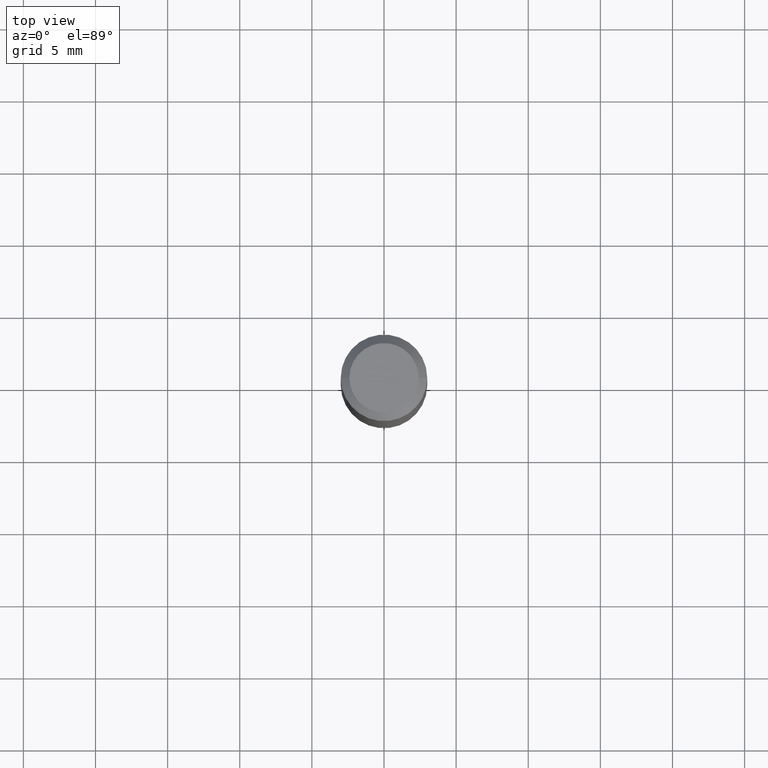
[diagram: clean part render]
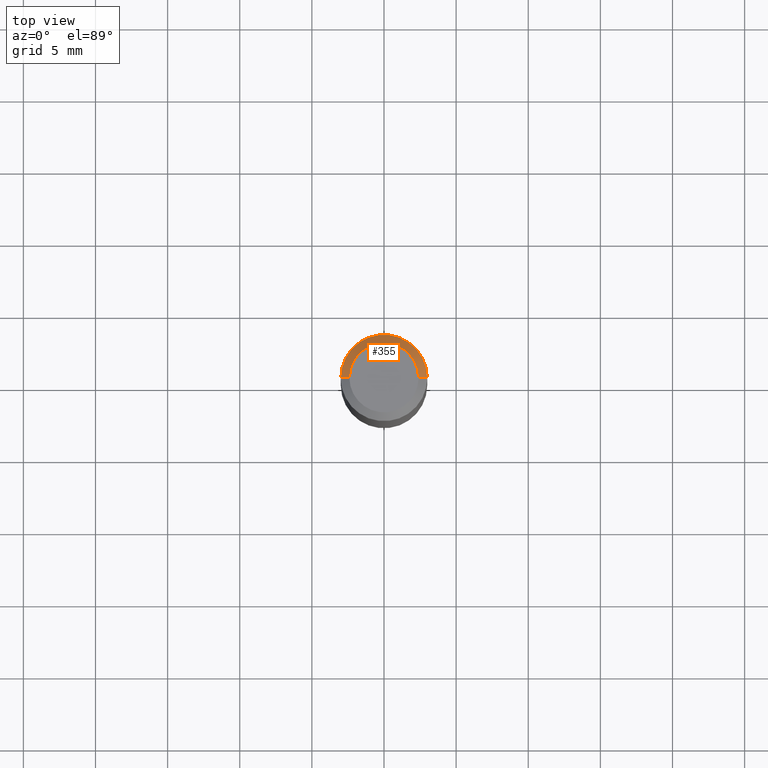
[diagram: same view with one face highlighted and labeled with its STEP entity id]
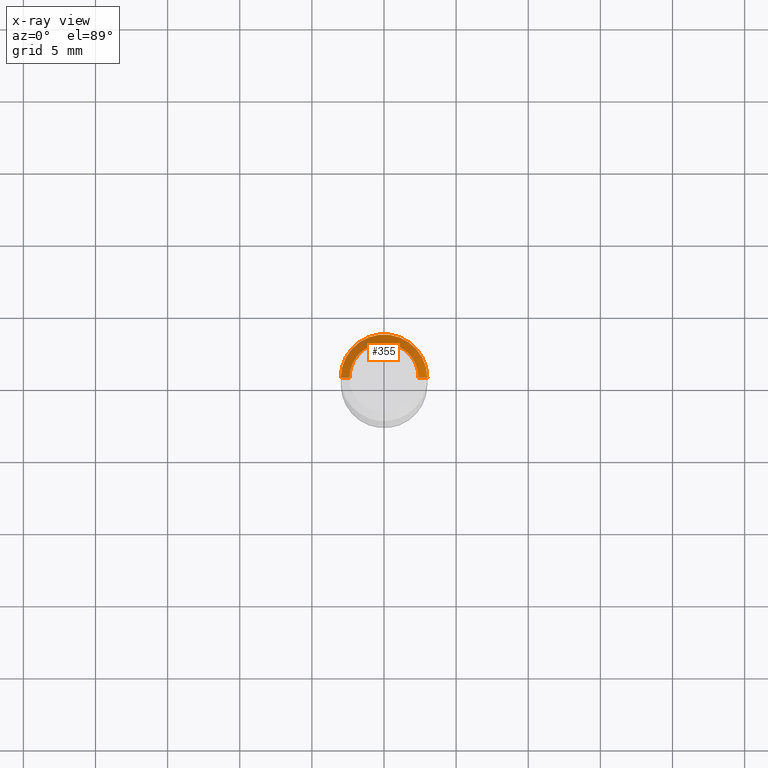
[diagram: x-ray of the same camera — body ghosted, the highlighted face saturated]
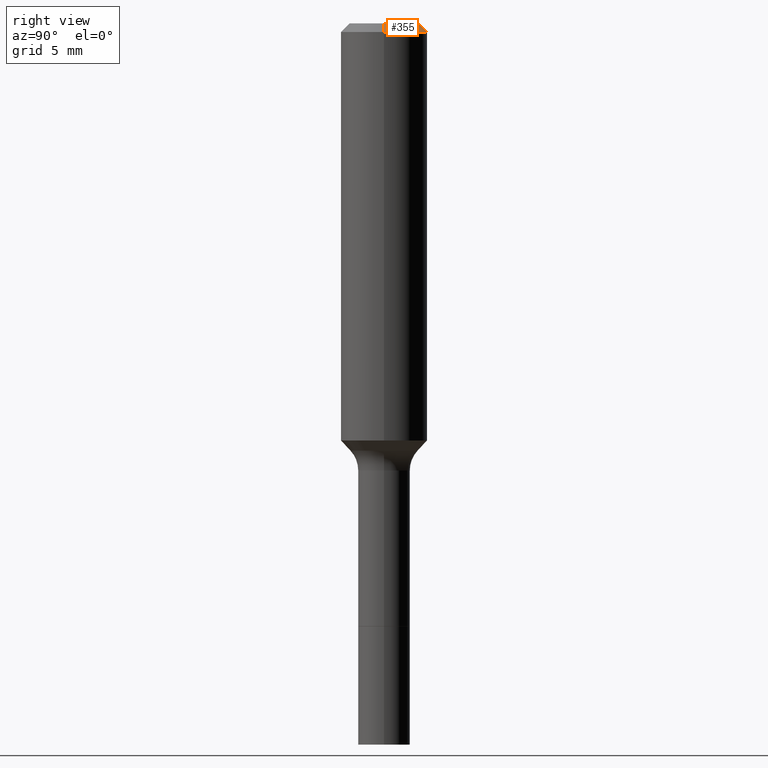
[diagram: same view with one face highlighted and labeled with its STEP entity id]
A machine part, top view. The second image highlights one B-rep face of the part: STEP entity #355.
The next image is the same camera in x-ray: the body ghosted, the highlighted face saturated — about 0% of this face is hidden behind the body in this view.
A second angle (right view) of the same face is appended — the face is thin or edge-on in the first view.
In plain terms, the highlighted conical surface has half-angle 45 deg.
Its self-contained STEP definition (entity closure, byte-faithful):
#9 = ORIENTED_EDGE ( 'NONE', *, *, #506, .T. ) ;
#14 = DIRECTION ( 'NONE',  ( 2.445468806185136597E-29, -3.491481338843145583E-15, -1.000000000000000000 ) ) ;
#17 = CARTESIAN_POINT ( 'NONE',  ( 5.776197320209328408E-31, -8.246878922347560526E-17, -0.02362000000000014435 ) ) ;
#24 = DIRECTION ( 'NONE',  ( 1.000000000000000000, -6.982962677686267499E-15, 4.875432709231658792E-29 ) ) ;
#40 = ORIENTED_EDGE ( 'NONE', *, *, #309, .T. ) ;
#44 = VERTEX_POINT ( 'NONE', #297 ) ;
#54 = CARTESIAN_POINT ( 'NONE',  ( 0.09447999999999998066, -7.704367267948738690E-16, -3.085620075131172158E-17 ) ) ;
#58 = DIRECTION ( 'NONE',  ( -2.445468806185136597E-29, 3.491481338843145583E-15, 1.000000000000000000 ) ) ;
#66 = LINE ( 'NONE', #512, #172 ) ;
#67 = FACE_OUTER_BOUND ( 'NONE', #259, .T. ) ;
#99 = CARTESIAN_POINT ( 'NONE',  ( 5.776197320209328408E-31, -8.246878922347560526E-17, -0.02362000000000014435 ) ) ;
#109 = CIRCLE ( 'NONE', #127, 0.09447999999999998066 ) ;
#111 = DIRECTION ( 'NONE',  ( -1.000000000000000000, 6.982962677686266711E-15, 0.000000000000000000 ) ) ;
#112 = AXIS2_PLACEMENT_3D ( 'NONE', #17, #14, #111 ) ;
#127 = AXIS2_PLACEMENT_3D ( 'NONE', #414, #58, #24 ) ;
#148 = CONICAL_SURFACE ( 'NONE', #112, 0.1180999999999999966, 0.7853981633974461696 ) ;
#159 = EDGE_CURVE ( 'NONE', #475, #365, #66, .T. ) ;
#172 = VECTOR ( 'NONE', #424, 39.37007874015748143 ) ;
#223 = CARTESIAN_POINT ( 'NONE',  ( -0.1180999999999999966, -1.189290997823139379E-15, -0.02362000000000014435 ) ) ;
#227 = DIRECTION ( 'NONE',  ( 1.000000000000000000, -6.982962677686266711E-15, 0.000000000000000000 ) ) ;
#240 = CARTESIAN_POINT ( 'NONE',  ( 0.1180999999999999966, -8.926936027602933910E-16, -0.02362000000000014435 ) ) ;
#259 = EDGE_LOOP ( 'NONE', ( #417, #9, #40, #490 ) ) ;
#266 = CIRCLE ( 'NONE', #329, 0.1180999999999999966 ) ;
#297 = CARTESIAN_POINT ( 'NONE',  ( 0.1180999999999999966, -9.071566814582237199E-16, -0.02362000000000014435 ) ) ;
#309 = EDGE_CURVE ( 'NONE', #44, #365, #266, .T. ) ;
#329 = AXIS2_PLACEMENT_3D ( 'NONE', #99, #342, #227 ) ;
#342 = DIRECTION ( 'NONE',  ( -2.445468806185136597E-29, 3.491481338843145583E-15, 1.000000000000000000 ) ) ;
#345 = LINE ( 'NONE', #240, #394 ) ;
#355 = ADVANCED_FACE ( 'NONE', ( #67 ), #148, .T. ) ;
#360 = DIRECTION ( 'NONE',  ( 0.7071067811865460184, -7.319954787623251312E-15, -0.7071067811865490160 ) ) ;
#365 = VERTEX_POINT ( 'NONE', #223 ) ;
#394 = VECTOR ( 'NONE', #360, 39.37007874015748143 ) ;
#399 = VERTEX_POINT ( 'NONE', #54 ) ;
#414 = CARTESIAN_POINT ( 'NONE',  ( 7.545787641473140628E-46, -1.077338491108201769E-31, -3.085620075131671975E-17 ) ) ;
#417 = ORIENTED_EDGE ( 'NONE', *, *, #425, .F. ) ;
#424 = DIRECTION ( 'NONE',  ( -0.7071067811865460184, 2.468850131082241283E-15, -0.7071067811865490160 ) ) ;
#425 = EDGE_CURVE ( 'NONE', #399, #475, #109, .T. ) ;
#464 = CARTESIAN_POINT ( 'NONE',  ( -0.09447999999999998066, 7.009847083995354710E-16, -3.085620075132147757E-17 ) ) ;
#475 = VERTEX_POINT ( 'NONE', #464 ) ;
#490 = ORIENTED_EDGE ( 'NONE', *, *, #159, .F. ) ;
#506 = EDGE_CURVE ( 'NONE', #399, #44, #345, .T. ) ;
#512 = CARTESIAN_POINT ( 'NONE',  ( -0.1180999999999999966, 7.422191030112725094E-16, -0.02362000000000014435 ) ) ;